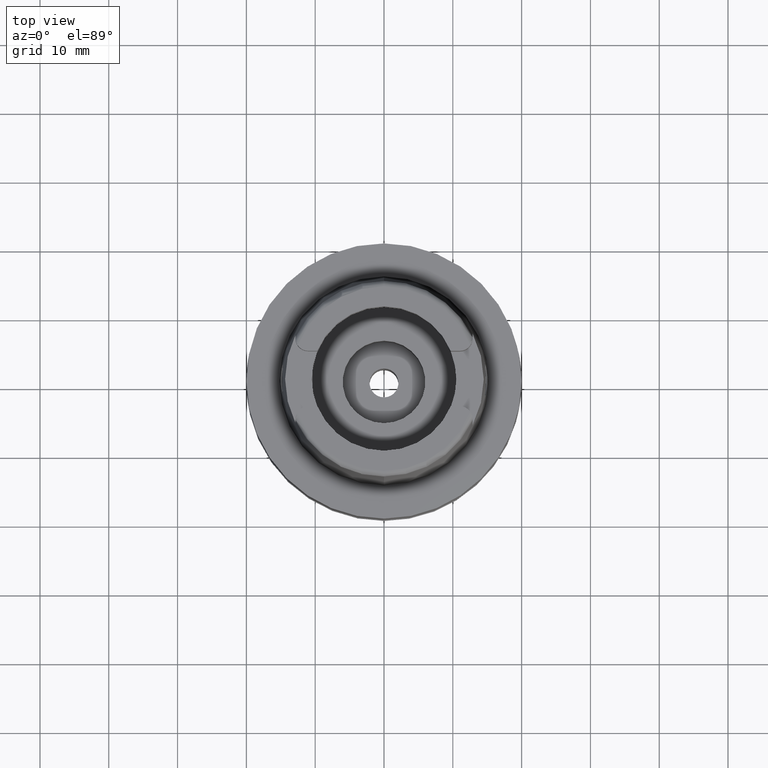
[diagram: clean part render]
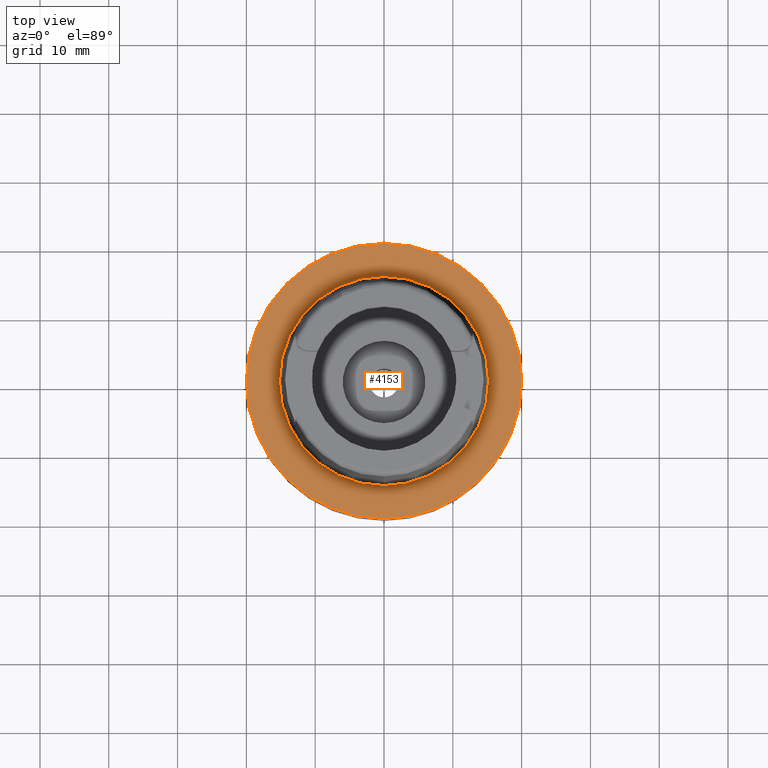
[diagram: same view with one face highlighted and labeled with its STEP entity id]
A machine part, top view. The second image highlights one B-rep face of the part: STEP entity #4153.
In plain terms, the highlighted planar face has unit normal (0, 0, 1).
Its self-contained STEP definition (entity closure, byte-faithful):
#2142=CARTESIAN_POINT('',(0.E0,0.E0,0.E0));
#2143=DIRECTION('',(0.E0,0.E0,-1.E0));
#2144=DIRECTION('',(0.E0,-1.E0,0.E0));
#2145=AXIS2_PLACEMENT_3D('',#2142,#2143,#2144);
#2150=CARTESIAN_POINT('',(0.E0,0.E0,0.E0));
#2151=DIRECTION('',(0.E0,0.E0,-1.E0));
#2152=DIRECTION('',(0.E0,1.E0,0.E0));
#2153=AXIS2_PLACEMENT_3D('',#2150,#2151,#2152);
#2158=CARTESIAN_POINT('',(0.E0,0.E0,7.958078640513E-13));
#2159=DIRECTION('',(0.E0,0.E0,1.E0));
#2160=DIRECTION('',(0.E0,-1.E0,0.E0));
#2161=AXIS2_PLACEMENT_3D('',#2158,#2159,#2160);
#2166=CARTESIAN_POINT('',(0.E0,0.E0,7.958078640513E-13));
#2167=DIRECTION('',(0.E0,0.E0,1.E0));
#2168=DIRECTION('',(0.E0,1.E0,0.E0));
#2169=AXIS2_PLACEMENT_3D('',#2166,#2167,#2168);
#2348=CARTESIAN_POINT('',(0.E0,-1.520000663301E1,4.547473508865E-13));
#2349=VERTEX_POINT('',#2348);
#2350=CARTESIAN_POINT('',(0.E0,1.520000663301E1,7.958078640513E-13));
#2351=VERTEX_POINT('',#2350);
#2602=CARTESIAN_POINT('',(0.E0,2.E1,0.E0));
#2603=VERTEX_POINT('',#2602);
#2604=CARTESIAN_POINT('',(0.E0,-2.E1,0.E0));
#2605=VERTEX_POINT('',#2604);
#4140=CARTESIAN_POINT('',(0.E0,0.E0,0.E0));
#4141=DIRECTION('',(0.E0,0.E0,1.E0));
#4142=DIRECTION('',(0.E0,1.E0,0.E0));
#4143=AXIS2_PLACEMENT_3D('',#4140,#4141,#4142);
#4144=PLANE('',#4143);
#4145=ORIENTED_EDGE('',*,*,#3752,.T.);
#4146=ORIENTED_EDGE('',*,*,#3895,.T.);
#4147=EDGE_LOOP('',(#4145,#4146));
#4148=FACE_OUTER_BOUND('',#4147,.F.);
#4149=ORIENTED_EDGE('',*,*,#2828,.T.);
#4150=ORIENTED_EDGE('',*,*,#2797,.T.);
#4151=EDGE_LOOP('',(#4149,#4150));
#4152=FACE_BOUND('',#4151,.F.);
#2146=CIRCLE('',#2145,2.E1);
#2154=CIRCLE('',#2153,2.E1);
#2162=CIRCLE('',#2161,1.520000663301E1);
#2170=CIRCLE('',#2169,1.520000663301E1);
#2797=EDGE_CURVE('',#2351,#2349,#2170,.T.);
#2828=EDGE_CURVE('',#2349,#2351,#2162,.T.);
#3752=EDGE_CURVE('',#2605,#2603,#2146,.T.);
#3895=EDGE_CURVE('',#2603,#2605,#2154,.T.);
#4153=ADVANCED_FACE('',(#4148,#4152),#4144,.T.);